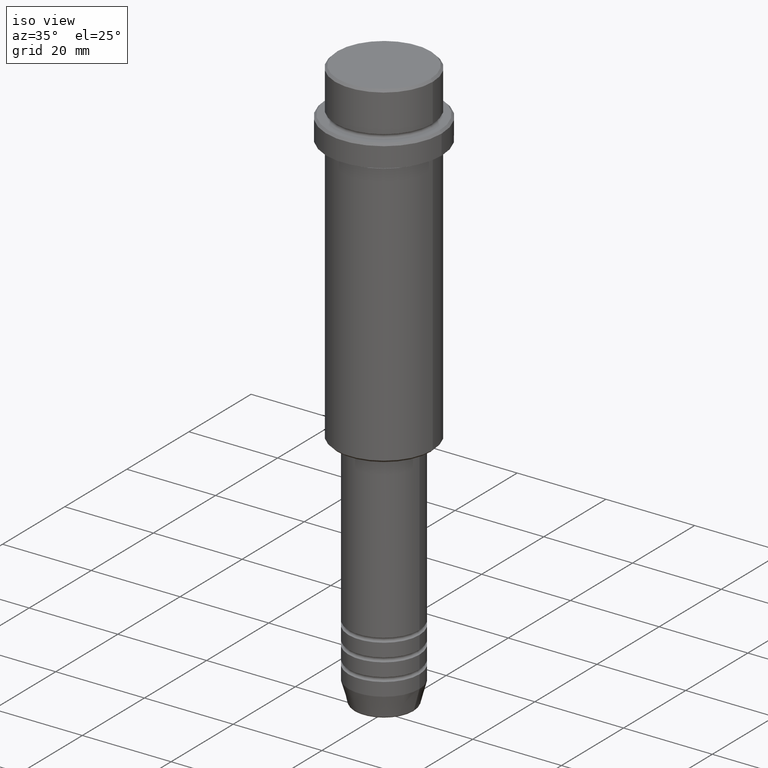
[diagram: clean part render]
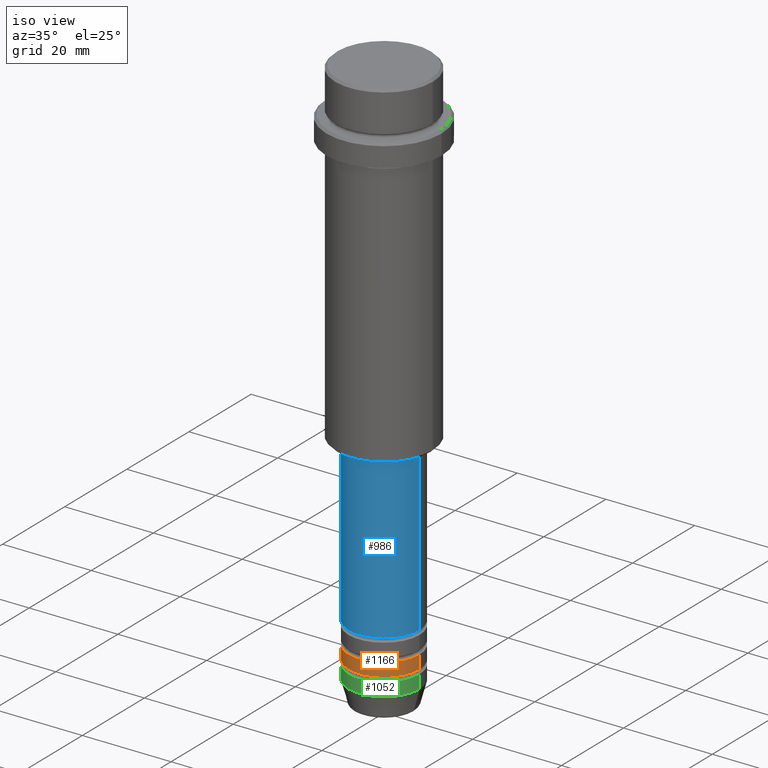
[diagram: same view with three faces highlighted in distinct colors, each labeled with its STEP entity id]
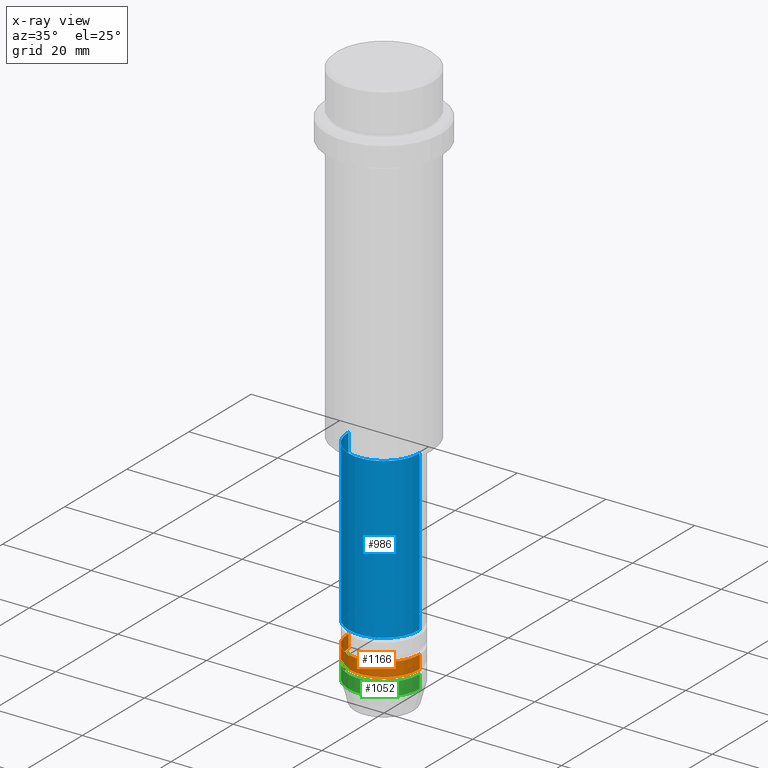
[diagram: x-ray of the same camera — body ghosted, the three highlighted faces saturated]
A machine part, iso view with three faces highlighted in distinct colors.
The next image is the same camera in x-ray (body ghosted, the three faces saturated) — at least one of them is partly hidden behind the body in this view.
Their STEP definitions:

[orange] entity #1166 — the highlighted cylindrical surface (partial cylindrical patch) has radius 8 mm, axis along (-0, -0, 1).
#28 = ORIENTED_EDGE ( 'NONE', *, *, #1334, .F. ) ;
#37 = DIRECTION ( 'NONE',  ( -0.000000000000000000, -0.000000000000000000, 1.000000000000000000 ) ) ;
#54 = DIRECTION ( 'NONE',  ( 1.000000000000000000, 0.000000000000000000, 0.000000000000000000 ) ) ;
#96 = DIRECTION ( 'NONE',  ( -0.000000000000000000, -0.000000000000000000, 1.000000000000000000 ) ) ;
#130 = CARTESIAN_POINT ( 'NONE',  ( 8.000000000000000000, 0.000000000000000000, -120.9999999999998863 ) ) ;
#199 = EDGE_LOOP ( 'NONE', ( #28, #723, #1153, #409 ) ) ;
#203 = VERTEX_POINT ( 'NONE', #939 ) ;
#231 = VECTOR ( 'NONE', #96, 1000.000000000000000 ) ;
#320 = CARTESIAN_POINT ( 'NONE',  ( -8.000000000000000000, 9.797174393178825657E-16, -117.9999999999998863 ) ) ;
#336 = DIRECTION ( 'NONE',  ( -0.000000000000000000, -0.000000000000000000, 1.000000000000000000 ) ) ;
#378 = VERTEX_POINT ( 'NONE', #320 ) ;
#409 = ORIENTED_EDGE ( 'NONE', *, *, #1046, .F. ) ;
#434 = DIRECTION ( 'NONE',  ( 1.000000000000000000, 0.000000000000000000, 0.000000000000000000 ) ) ;
#512 = AXIS2_PLACEMENT_3D ( 'NONE', #1348, #336, #797 ) ;
#537 = CYLINDRICAL_SURFACE ( 'NONE', #744, 8.000000000000000000 ) ;
#605 = VECTOR ( 'NONE', #764, 1000.000000000000000 ) ;
#630 = VERTEX_POINT ( 'NONE', #1360 ) ;
#712 = VERTEX_POINT ( 'NONE', #130 ) ;
#713 = CARTESIAN_POINT ( 'NONE',  ( -8.000000000000000000, 9.797174393178825657E-16, 0.000000000000000000 ) ) ;
#723 = ORIENTED_EDGE ( 'NONE', *, *, #1064, .T. ) ;
#744 = AXIS2_PLACEMENT_3D ( 'NONE', #992, #978, #434 ) ;
#764 = DIRECTION ( 'NONE',  ( -0.000000000000000000, -0.000000000000000000, 1.000000000000000000 ) ) ;
#768 = AXIS2_PLACEMENT_3D ( 'NONE', #778, #37, #54 ) ;
#778 = CARTESIAN_POINT ( 'NONE',  ( 0.000000000000000000, 0.000000000000000000, -117.9999999999998863 ) ) ;
#782 = FACE_OUTER_BOUND ( 'NONE', #199, .T. ) ;
#797 = DIRECTION ( 'NONE',  ( 1.000000000000000000, 0.000000000000000000, 0.000000000000000000 ) ) ;
#876 = LINE ( 'NONE', #1322, #605 ) ;
#939 = CARTESIAN_POINT ( 'NONE',  ( -8.000000000000000000, 9.797174393178825657E-16, -120.9999999999998863 ) ) ;
#953 = CIRCLE ( 'NONE', #512, 8.000000000000000000 ) ;
#978 = DIRECTION ( 'NONE',  ( -0.000000000000000000, -0.000000000000000000, 1.000000000000000000 ) ) ;
#992 = CARTESIAN_POINT ( 'NONE',  ( 0.000000000000000000, 0.000000000000000000, 0.000000000000000000 ) ) ;
#1046 = EDGE_CURVE ( 'NONE', #378, #630, #1283, .T. ) ;
#1064 = EDGE_CURVE ( 'NONE', #203, #712, #953, .T. ) ;
#1075 = LINE ( 'NONE', #713, #231 ) ;
#1153 = ORIENTED_EDGE ( 'NONE', *, *, #1208, .T. ) ;
#1166 = ADVANCED_FACE ( 'NONE', ( #782 ), #537, .T. ) ;
#1208 = EDGE_CURVE ( 'NONE', #712, #630, #876, .T. ) ;
#1283 = CIRCLE ( 'NONE', #768, 8.000000000000000000 ) ;
#1322 = CARTESIAN_POINT ( 'NONE',  ( 8.000000000000000000, 0.000000000000000000, 0.000000000000000000 ) ) ;
#1334 = EDGE_CURVE ( 'NONE', #203, #378, #1075, .T. ) ;
#1348 = CARTESIAN_POINT ( 'NONE',  ( 0.000000000000000000, 0.000000000000000000, -120.9999999999998863 ) ) ;
#1360 = CARTESIAN_POINT ( 'NONE',  ( 8.000000000000000000, 0.000000000000000000, -117.9999999999998863 ) ) ;

[blue] entity #986 — the highlighted cylindrical surface (partial cylindrical patch) has radius 8 mm, axis along (-0, -0, 1).
#32 = DIRECTION ( 'NONE',  ( -0.000000000000000000, -0.000000000000000000, 1.000000000000000000 ) ) ;
#111 = VERTEX_POINT ( 'NONE', #1174 ) ;
#148 = CARTESIAN_POINT ( 'NONE',  ( 0.000000000000000000, 0.000000000000000000, -112.9999999999998721 ) ) ;
#174 = DIRECTION ( 'NONE',  ( 1.000000000000000000, 0.000000000000000000, 0.000000000000000000 ) ) ;
#239 = CARTESIAN_POINT ( 'NONE',  ( 8.000000000000000000, 0.000000000000000000, 0.000000000000000000 ) ) ;
#310 = CARTESIAN_POINT ( 'NONE',  ( -8.000000000000000000, 9.797174393178825657E-16, -77.00000000000000000 ) ) ;
#330 = CARTESIAN_POINT ( 'NONE',  ( 0.000000000000000000, 0.000000000000000000, 0.000000000000000000 ) ) ;
#342 = EDGE_CURVE ( 'NONE', #111, #1097, #775, .T. ) ;
#431 = FACE_OUTER_BOUND ( 'NONE', #811, .T. ) ;
#472 = EDGE_CURVE ( 'NONE', #111, #1317, #1397, .T. ) ;
#474 = CIRCLE ( 'NONE', #718, 8.000000000000000000 ) ;
#538 = ORIENTED_EDGE ( 'NONE', *, *, #1134, .F. ) ;
#626 = AXIS2_PLACEMENT_3D ( 'NONE', #330, #760, #1105 ) ;
#628 = EDGE_CURVE ( 'NONE', #1317, #1138, #888, .T. ) ;
#704 = CARTESIAN_POINT ( 'NONE',  ( 8.000000000000000000, 0.000000000000000000, -77.00000000000000000 ) ) ;
#718 = AXIS2_PLACEMENT_3D ( 'NONE', #1376, #731, #174 ) ;
#731 = DIRECTION ( 'NONE',  ( -0.000000000000000000, -0.000000000000000000, 1.000000000000000000 ) ) ;
#760 = DIRECTION ( 'NONE',  ( -0.000000000000000000, -0.000000000000000000, 1.000000000000000000 ) ) ;
#775 = LINE ( 'NONE', #1308, #1234 ) ;
#786 = ORIENTED_EDGE ( 'NONE', *, *, #628, .T. ) ;
#811 = EDGE_LOOP ( 'NONE', ( #1301, #903, #786, #538 ) ) ;
#855 = DIRECTION ( 'NONE',  ( -0.000000000000000000, -0.000000000000000000, 1.000000000000000000 ) ) ;
#888 = LINE ( 'NONE', #239, #1029 ) ;
#903 = ORIENTED_EDGE ( 'NONE', *, *, #472, .T. ) ;
#952 = AXIS2_PLACEMENT_3D ( 'NONE', #148, #1021, #1254 ) ;
#962 = CARTESIAN_POINT ( 'NONE',  ( 8.000000000000000000, 0.000000000000000000, -112.9999999999998721 ) ) ;
#986 = ADVANCED_FACE ( 'NONE', ( #431 ), #1318, .T. ) ;
#1021 = DIRECTION ( 'NONE',  ( -0.000000000000000000, -0.000000000000000000, 1.000000000000000000 ) ) ;
#1029 = VECTOR ( 'NONE', #32, 1000.000000000000000 ) ;
#1097 = VERTEX_POINT ( 'NONE', #310 ) ;
#1105 = DIRECTION ( 'NONE',  ( 1.000000000000000000, 0.000000000000000000, 0.000000000000000000 ) ) ;
#1134 = EDGE_CURVE ( 'NONE', #1097, #1138, #474, .T. ) ;
#1138 = VERTEX_POINT ( 'NONE', #704 ) ;
#1174 = CARTESIAN_POINT ( 'NONE',  ( -8.000000000000000000, 9.797174393178825657E-16, -112.9999999999998721 ) ) ;
#1234 = VECTOR ( 'NONE', #855, 1000.000000000000000 ) ;
#1254 = DIRECTION ( 'NONE',  ( 1.000000000000000000, 0.000000000000000000, 0.000000000000000000 ) ) ;
#1301 = ORIENTED_EDGE ( 'NONE', *, *, #342, .F. ) ;
#1308 = CARTESIAN_POINT ( 'NONE',  ( -8.000000000000000000, 9.797174393178825657E-16, 0.000000000000000000 ) ) ;
#1317 = VERTEX_POINT ( 'NONE', #962 ) ;
#1318 = CYLINDRICAL_SURFACE ( 'NONE', #626, 8.000000000000000000 ) ;
#1376 = CARTESIAN_POINT ( 'NONE',  ( 0.000000000000000000, 0.000000000000000000, -77.00000000000000000 ) ) ;
#1397 = CIRCLE ( 'NONE', #952, 8.000000000000000000 ) ;

[green] entity #1052 — the highlighted cylindrical surface (partial cylindrical patch) has radius 8 mm, axis along (-0, -0, 1).
#5 = LINE ( 'NONE', #1314, #97 ) ;
#87 = DIRECTION ( 'NONE',  ( 1.000000000000000000, 0.000000000000000000, 0.000000000000000000 ) ) ;
#97 = VECTOR ( 'NONE', #326, 1000.000000000000000 ) ;
#99 = VERTEX_POINT ( 'NONE', #398 ) ;
#127 = EDGE_CURVE ( 'NONE', #99, #1312, #180, .T. ) ;
#180 = CIRCLE ( 'NONE', #711, 8.000000000000000000 ) ;
#245 = CARTESIAN_POINT ( 'NONE',  ( -8.000000000000000000, 9.797174393178825657E-16, -122.0000000000000000 ) ) ;
#246 = LINE ( 'NONE', #461, #338 ) ;
#281 = DIRECTION ( 'NONE',  ( -0.000000000000000000, -0.000000000000000000, 1.000000000000000000 ) ) ;
#326 = DIRECTION ( 'NONE',  ( -0.000000000000000000, -0.000000000000000000, 1.000000000000000000 ) ) ;
#338 = VECTOR ( 'NONE', #354, 1000.000000000000000 ) ;
#340 = AXIS2_PLACEMENT_3D ( 'NONE', #879, #1324, #1221 ) ;
#354 = DIRECTION ( 'NONE',  ( -0.000000000000000000, -0.000000000000000000, 1.000000000000000000 ) ) ;
#384 = CIRCLE ( 'NONE', #1033, 8.000000000000000000 ) ;
#398 = CARTESIAN_POINT ( 'NONE',  ( -8.000000000000000000, 9.797174393178825657E-16, -125.0000000000000000 ) ) ;
#432 = CARTESIAN_POINT ( 'NONE',  ( 8.000000000000000000, 0.000000000000000000, -122.0000000000000000 ) ) ;
#454 = ORIENTED_EDGE ( 'NONE', *, *, #1405, .T. ) ;
#460 = FACE_OUTER_BOUND ( 'NONE', #1220, .T. ) ;
#461 = CARTESIAN_POINT ( 'NONE',  ( -8.000000000000000000, 9.797174393178825657E-16, 0.000000000000000000 ) ) ;
#517 = CARTESIAN_POINT ( 'NONE',  ( 8.000000000000000000, 0.000000000000000000, -125.0000000000000000 ) ) ;
#569 = VERTEX_POINT ( 'NONE', #432 ) ;
#609 = EDGE_CURVE ( 'NONE', #99, #1008, #246, .T. ) ;
#661 = CYLINDRICAL_SURFACE ( 'NONE', #340, 8.000000000000000000 ) ;
#711 = AXIS2_PLACEMENT_3D ( 'NONE', #1157, #281, #87 ) ;
#879 = CARTESIAN_POINT ( 'NONE',  ( 0.000000000000000000, 0.000000000000000000, 0.000000000000000000 ) ) ;
#924 = DIRECTION ( 'NONE',  ( -0.000000000000000000, -0.000000000000000000, 1.000000000000000000 ) ) ;
#1008 = VERTEX_POINT ( 'NONE', #245 ) ;
#1033 = AXIS2_PLACEMENT_3D ( 'NONE', #1044, #924, #1038 ) ;
#1038 = DIRECTION ( 'NONE',  ( 1.000000000000000000, 0.000000000000000000, 0.000000000000000000 ) ) ;
#1044 = CARTESIAN_POINT ( 'NONE',  ( 0.000000000000000000, 0.000000000000000000, -122.0000000000000000 ) ) ;
#1052 = ADVANCED_FACE ( 'NONE', ( #460 ), #661, .T. ) ;
#1108 = EDGE_CURVE ( 'NONE', #1008, #569, #384, .T. ) ;
#1110 = ORIENTED_EDGE ( 'NONE', *, *, #609, .F. ) ;
#1157 = CARTESIAN_POINT ( 'NONE',  ( 0.000000000000000000, 0.000000000000000000, -125.0000000000000000 ) ) ;
#1170 = ORIENTED_EDGE ( 'NONE', *, *, #127, .T. ) ;
#1220 = EDGE_LOOP ( 'NONE', ( #1110, #1170, #454, #1245 ) ) ;
#1221 = DIRECTION ( 'NONE',  ( 1.000000000000000000, 0.000000000000000000, 0.000000000000000000 ) ) ;
#1245 = ORIENTED_EDGE ( 'NONE', *, *, #1108, .F. ) ;
#1312 = VERTEX_POINT ( 'NONE', #517 ) ;
#1314 = CARTESIAN_POINT ( 'NONE',  ( 8.000000000000000000, 0.000000000000000000, 0.000000000000000000 ) ) ;
#1324 = DIRECTION ( 'NONE',  ( -0.000000000000000000, -0.000000000000000000, 1.000000000000000000 ) ) ;
#1405 = EDGE_CURVE ( 'NONE', #1312, #569, #5, .T. ) ;